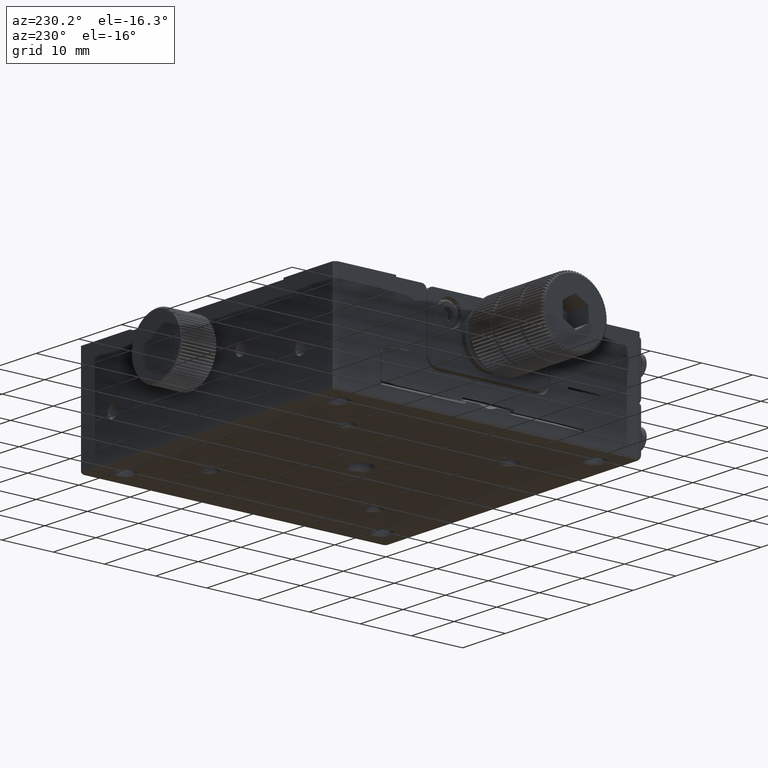
[diagram: clean part render]
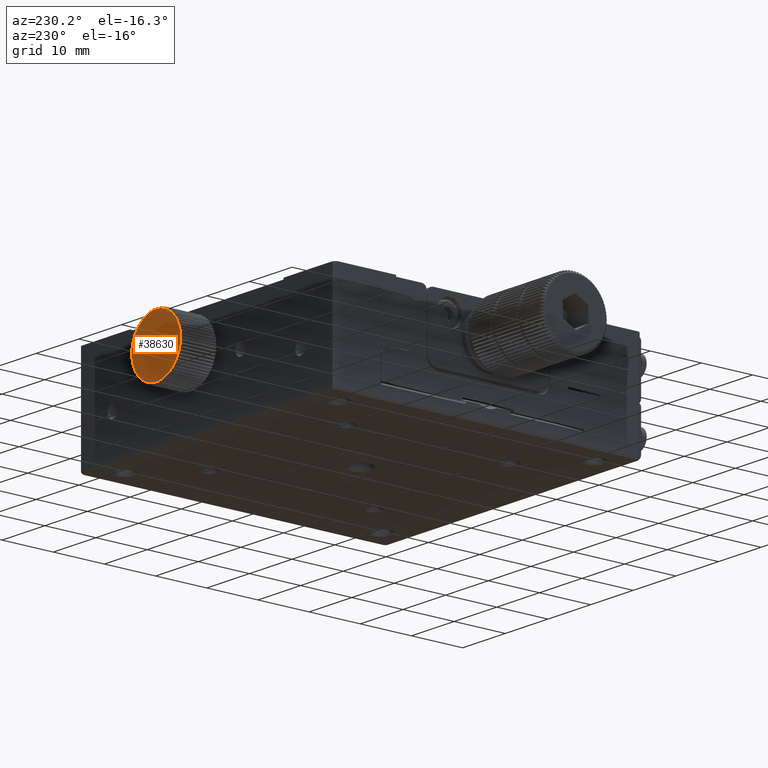
[diagram: same view with one face highlighted and labeled with its STEP entity id]
A machine part, auxiliary view. The second image highlights one B-rep face of the part: STEP entity #38630.
In plain terms, the highlighted planar face has unit normal (-0, -1, -0).
Its self-contained STEP definition (entity closure, byte-faithful):
#73 = CARTESIAN_POINT ( 'NONE',  ( -5.637851296924623057E-14, 39.88660254037768027, 71.59999999999998010 ) ) ;
#114 = CARTESIAN_POINT ( 'NONE',  ( -5.637851296924623057E-14, 39.88660254037768027, 71.59999999999998010 ) ) ;
#170 = ORIENTED_EDGE ( 'NONE', *, *, #13670, .F. ) ;
#202 = CARTESIAN_POINT ( 'NONE',  ( -4.456439450089708210, 39.88660254037885977, 75.15389187061225584 ) ) ;
#418 = VERTEX_POINT ( 'NONE', #12249 ) ;
#574 = DIRECTION ( 'NONE',  ( 0.000000000000000000, 0.000000000000000000, -1.000000000000000000 ) ) ;
#654 = CARTESIAN_POINT ( 'NONE',  ( -5.637851296924623057E-14, 39.88660254037768027, 71.59999999999998010 ) ) ;
#813 = AXIS2_PLACEMENT_3D ( 'NONE', #654, #23727, #24073 ) ;
#843 = CARTESIAN_POINT ( 'NONE',  ( -5.637851296924623057E-14, 39.88660254037768027, 71.59999999999998010 ) ) ;
#985 = CARTESIAN_POINT ( 'NONE',  ( 3.750250737874688767, 39.88660254037885977, 67.30749264375825192 ) ) ;
#1042 = DIRECTION ( 'NONE',  ( 0.000000000000000000, -1.000000000000000000, 0.000000000000000000 ) ) ;
#1743 = VERTEX_POINT ( 'NONE', #16756 ) ;
#1746 = CARTESIAN_POINT ( 'NONE',  ( -5.637851296924623057E-14, 39.88660254037768027, 71.59999999999998010 ) ) ;
#1793 = DIRECTION ( 'NONE',  ( 0.000000000000000000, -1.000000000000000000, 0.000000000000000000 ) ) ;
#1891 = EDGE_CURVE ( 'NONE', #21745, #46758, #45367, .T. ) ;
#1985 = DIRECTION ( 'NONE',  ( 0.000000000000000000, -1.000000000000000000, 0.000000000000000000 ) ) ;
#2008 = CIRCLE ( 'NONE', #14064, 5.700000000028015990 ) ;
#2281 = CARTESIAN_POINT ( 'NONE',  ( 1.516410019737370662, 39.88660254037885977, 66.10541169400659101 ) ) ;
#2411 = DIRECTION ( 'NONE',  ( 0.000000000000000000, 1.303473165011296040E-31, -1.000000000000000000 ) ) ;
#2430 = EDGE_CURVE ( 'NONE', #2847, #47675, #12878, .T. ) ;
#2717 = VERTEX_POINT ( 'NONE', #64914 ) ;
#2847 = VERTEX_POINT ( 'NONE', #71300 ) ;
#2948 = VERTEX_POINT ( 'NONE', #55495 ) ;
#3028 = VERTEX_POINT ( 'NONE', #57364 ) ;
#3254 = CARTESIAN_POINT ( 'NONE',  ( -5.241308303569086391, 39.88660254037885977, 69.35975731956162349 ) ) ;
#3396 = CARTESIAN_POINT ( 'NONE',  ( 0.5109440607520693289, 39.88660254037885977, 77.27705347580072726 ) ) ;
#3452 = CARTESIAN_POINT ( 'NONE',  ( -5.637851296924623057E-14, 39.88660254037768027, 71.59999999999998010 ) ) ;
#3989 = CIRCLE ( 'NONE', #22145, 5.700000000028015990 ) ;
#4030 = CARTESIAN_POINT ( 'NONE',  ( -5.637851296924623057E-14, 39.88660254037768027, 71.59999999999998010 ) ) ;
#4121 = VERTEX_POINT ( 'NONE', #53152 ) ;
#4177 = DIRECTION ( 'NONE',  ( 0.000000000000000000, 0.000000000000000000, -1.000000000000000000 ) ) ;
#4229 = CIRCLE ( 'NONE', #19952, 5.700000000028015990 ) ;
#4582 = CIRCLE ( 'NONE', #46755, 5.700000000028015990 ) ;
#4630 = CARTESIAN_POINT ( 'NONE',  ( -5.637851296924623057E-14, 39.88660254037768027, 71.59999999999998010 ) ) ;
#4690 = VERTEX_POINT ( 'NONE', #56081 ) ;
#4863 = CARTESIAN_POINT ( 'NONE',  ( -5.637851296924623057E-14, 39.88660254037768027, 71.59999999999998010 ) ) ;
#4919 = CARTESIAN_POINT ( 'NONE',  ( -5.694260479313539847, 39.88660254037885977, 71.34427046700079700 ) ) ;
#4964 = VERTEX_POINT ( 'NONE', #37169 ) ;
#4996 = ORIENTED_EDGE ( 'NONE', *, *, #41242, .F. ) ;
#5050 = DIRECTION ( 'NONE',  ( 0.000000000000000000, 0.000000000000000000, -1.000000000000000000 ) ) ;
#5168 = DIRECTION ( 'NONE',  ( 0.000000000000000000, -1.000000000000000000, 0.000000000000000000 ) ) ;
#5618 = DIRECTION ( 'NONE',  ( 0.000000000000000000, 0.000000000000000000, -1.000000000000000000 ) ) ;
#5873 = CARTESIAN_POINT ( 'NONE',  ( 5.648413642104929799, 39.88660254037885977, 70.83487038483552567 ) ) ;
#5888 = DIRECTION ( 'NONE',  ( 0.000000000000000000, -1.000000000000000000, 0.000000000000000000 ) ) ;
#5984 = CARTESIAN_POINT ( 'NONE',  ( -0.5109440607521404942, 39.88660254037885977, 65.92294652419921874 ) ) ;
#6027 = CIRCLE ( 'NONE', #24158, 5.700000000028015990 ) ;
#6265 = DIRECTION ( 'NONE',  ( 0.000000000000000000, -1.000000000000000000, 0.000000000000000000 ) ) ;
#6295 = CARTESIAN_POINT ( 'NONE',  ( -5.637851296924623057E-14, 39.88660254037768027, 71.59999999999998010 ) ) ;
#6296 = CIRCLE ( 'NONE', #65352, 5.700000000028015990 ) ;
#6415 = CARTESIAN_POINT ( 'NONE',  ( -1.516410019737519876, 39.88660254037885977, 77.09458830599336920 ) ) ;
#6450 = CIRCLE ( 'NONE', #20951, 5.700000000028015990 ) ;
#6513 = CARTESIAN_POINT ( 'NONE',  ( -1.017774300357290107, 39.88660254037885977, 65.99160134496024455 ) ) ;
#6578 = VERTEX_POINT ( 'NONE', #2281 ) ;
#6614 = DIRECTION ( 'NONE',  ( 0.000000000000000000, -1.000000000000000000, 0.000000000000000000 ) ) ;
#6656 = DIRECTION ( 'NONE',  ( 0.000000000000000000, 0.000000000000000000, -1.000000000000000000 ) ) ;
#6736 = CIRCLE ( 'NONE', #30906, 5.700000000028015990 ) ;
#7068 = CIRCLE ( 'NONE', #73309, 5.700000000028015990 ) ;
#7110 = ORIENTED_EDGE ( 'NONE', *, *, #16352, .F. ) ;
#7203 = CARTESIAN_POINT ( 'NONE',  ( -5.637851296924623057E-14, 39.88660254037768027, 71.59999999999998010 ) ) ;
#7286 = CARTESIAN_POINT ( 'NONE',  ( -2.002836497273515093, 39.88660254037885977, 76.93653876267272551 ) ) ;
#7307 = DIRECTION ( 'NONE',  ( 0.000000000000000000, 0.000000000000000000, -1.000000000000000000 ) ) ;
#7354 = DIRECTION ( 'NONE',  ( 0.000000000000000000, -1.000000000000000000, 0.000000000000000000 ) ) ;
#7441 = CIRCLE ( 'NONE', #56867, 5.700000000028015990 ) ;
#7698 = ORIENTED_EDGE ( 'NONE', *, *, #53261, .F. ) ;
#7791 = CIRCLE ( 'NONE', #19916, 5.700000000028015990 ) ;
#7846 = VERTEX_POINT ( 'NONE', #13282 ) ;
#8159 = AXIS2_PLACEMENT_3D ( 'NONE', #10452, #49301, #33459 ) ;
#8487 = CARTESIAN_POINT ( 'NONE',  ( 5.557089099463633275, 39.88660254037885977, 70.33163067644268551 ) ) ;
#8502 = AXIS2_PLACEMENT_3D ( 'NONE', #17986, #5888, #41760 ) ;
#8571 = CARTESIAN_POINT ( 'NONE',  ( -5.637851296924623057E-14, 39.88660254037768027, 71.59999999999998010 ) ) ;
#8854 = FACE_OUTER_BOUND ( 'NONE', #38621, .T. ) ;
#8940 = CIRCLE ( 'NONE', #25839, 5.700000000028015990 ) ;
#9014 = CARTESIAN_POINT ( 'NONE',  ( 3.750250737874778917, 39.88660254037885977, 75.89250735624162303 ) ) ;
#9110 = ORIENTED_EDGE ( 'NONE', *, *, #56366, .F. ) ;
#9212 = EDGE_CURVE ( 'NONE', #36955, #47309, #25743, .T. ) ;
#9265 = ORIENTED_EDGE ( 'NONE', *, *, #2430, .F. ) ;
#9315 = CIRCLE ( 'NONE', #813, 5.700000000028015990 ) ;
#9342 = DIRECTION ( 'NONE',  ( 0.000000000000000000, 0.000000000000000000, -1.000000000000000000 ) ) ;
#9366 = ORIENTED_EDGE ( 'NONE', *, *, #31035, .F. ) ;
#9371 = CARTESIAN_POINT ( 'NONE',  ( 4.456439450089652254, 39.88660254037885977, 75.15389187061218479 ) ) ;
#9394 = EDGE_CURVE ( 'NONE', #53259, #9563, #6450, .T. ) ;
#9557 = EDGE_CURVE ( 'NONE', #4690, #39215, #70232, .T. ) ;
#9563 = VERTEX_POINT ( 'NONE', #19913 ) ;
#9565 = DIRECTION ( 'NONE',  ( 0.000000000000000000, -1.000000000000000000, 0.000000000000000000 ) ) ;
#9956 = VERTEX_POINT ( 'NONE', #29626 ) ;
#10272 = ORIENTED_EDGE ( 'NONE', *, *, #59354, .F. ) ;
#10283 = DIRECTION ( 'NONE',  ( 0.000000000000000000, -1.000000000000000000, 0.000000000000000000 ) ) ;
#10438 = ORIENTED_EDGE ( 'NONE', *, *, #74310, .F. ) ;
#10452 = CARTESIAN_POINT ( 'NONE',  ( -5.637851296924623057E-14, 39.88660254037768027, 71.59999999999998010 ) ) ;
#10554 = CIRCLE ( 'NONE', #67154, 5.700000000028015990 ) ;
#10603 = DIRECTION ( 'NONE',  ( 0.000000000000000000, 0.000000000000000000, -1.000000000000000000 ) ) ;
#10739 = DIRECTION ( 'NONE',  ( 0.000000000000000000, -1.000000000000000000, 0.000000000000000000 ) ) ;
#10788 = DIRECTION ( 'NONE',  ( 0.000000000000000000, -1.000000000000000000, 0.000000000000000000 ) ) ;
#10950 = CIRCLE ( 'NONE', #67487, 5.700000000028015990 ) ;
#11592 = CARTESIAN_POINT ( 'NONE',  ( -5.637851296924623057E-14, 39.88660254037768027, 71.59999999999998010 ) ) ;
#11844 = DIRECTION ( 'NONE',  ( 0.000000000000000000, -1.000000000000000000, 0.000000000000000000 ) ) ;
#12205 = DIRECTION ( 'NONE',  ( 0.000000000000000000, 0.000000000000000000, -1.000000000000000000 ) ) ;
#12206 = EDGE_CURVE ( 'NONE', #52687, #36594, #29817, .T. ) ;
#12249 = CARTESIAN_POINT ( 'NONE',  ( -1.516410019737558068, 39.88660254037885977, 66.10541169400660522 ) ) ;
#12426 = EDGE_CURVE ( 'NONE', #20358, #43337, #27495, .T. ) ;
#12703 = DIRECTION ( 'NONE',  ( 0.000000000000000000, -1.000000000000000000, 0.000000000000000000 ) ) ;
#12734 = VERTEX_POINT ( 'NONE', #31465 ) ;
#12870 = VERTEX_POINT ( 'NONE', #42247 ) ;
#12878 = CIRCLE ( 'NONE', #61053, 5.700000000028015990 ) ;
#13066 = DIRECTION ( 'NONE',  ( 0.000000000000000000, 0.000000000000000000, -1.000000000000000000 ) ) ;
#13146 = AXIS2_PLACEMENT_3D ( 'NONE', #52757, #1042, #24105 ) ;
#13282 = CARTESIAN_POINT ( 'NONE',  ( 5.241308303568989579, 39.88660254037885977, 73.84024268043830830 ) ) ;
#13427 = CIRCLE ( 'NONE', #66436, 5.700000000028015990 ) ;
#13670 = EDGE_CURVE ( 'NONE', #28881, #12734, #7068, .T. ) ;
#13829 = CARTESIAN_POINT ( 'NONE',  ( -5.637851296924623057E-14, 39.88660254037768027, 71.59999999999998010 ) ) ;
#13935 = ORIENTED_EDGE ( 'NONE', *, *, #46696, .F. ) ;
#14064 = AXIS2_PLACEMENT_3D ( 'NONE', #59508, #1793, #36548 ) ;
#14167 = CARTESIAN_POINT ( 'NONE',  ( 2.520483973924811494, 39.88660254037885977, 77.04492061807954428 ) ) ;
#14226 = DIRECTION ( 'NONE',  ( 0.000000000000000000, 0.000000000000000000, -1.000000000000000000 ) ) ;
#14389 = DIRECTION ( 'NONE',  ( 0.000000000000000000, -1.000000000000000000, 0.000000000000000000 ) ) ;
#14447 = DIRECTION ( 'NONE',  ( 0.000000000000000000, 0.000000000000000000, -1.000000000000000000 ) ) ;
#14514 = AXIS2_PLACEMENT_3D ( 'NONE', #27974, #68999, #63364 ) ;
#14641 = CIRCLE ( 'NONE', #49597, 5.700000000028015990 ) ;
#14771 = CIRCLE ( 'NONE', #35288, 5.700000000028015990 ) ;
#14906 = DIRECTION ( 'NONE',  ( 0.000000000000000000, -1.000000000000000000, 0.000000000000000000 ) ) ;
#14962 = DIRECTION ( 'NONE',  ( 0.000000000000000000, -1.000000000000000000, 0.000000000000000000 ) ) ;
#15010 = EDGE_CURVE ( 'NONE', #4121, #27420, #10950, .T. ) ;
#15073 = CIRCLE ( 'NONE', #25933, 5.700000000028015990 ) ;
#15098 = DIRECTION ( 'NONE',  ( 0.000000000000000000, -1.000000000000000000, 0.000000000000000000 ) ) ;
#15288 = CARTESIAN_POINT ( 'NONE',  ( -5.637851296924623057E-14, 39.88660254037768027, 71.59999999999998010 ) ) ;
#15297 = CARTESIAN_POINT ( 'NONE',  ( -5.421022142909071029, 39.88660254037885977, 73.36139686794585657 ) ) ;
#15330 = ORIENTED_EDGE ( 'NONE', *, *, #1891, .F. ) ;
#15477 = CARTESIAN_POINT ( 'NONE',  ( -5.637851296924623057E-14, 39.88660254037768027, 71.59999999999998010 ) ) ;
#15611 = DIRECTION ( 'NONE',  ( 0.000000000000000000, 0.000000000000000000, -1.000000000000000000 ) ) ;
#15688 = CIRCLE ( 'NONE', #57810, 5.700000000028015990 ) ;
#15793 = DIRECTION ( 'NONE',  ( 0.000000000000000000, 0.000000000000000000, -1.000000000000000000 ) ) ;
#15910 = VERTEX_POINT ( 'NONE', #29157 ) ;
#16031 = DIRECTION ( 'NONE',  ( 0.000000000000000000, 0.000000000000000000, -1.000000000000000000 ) ) ;
#16352 = EDGE_CURVE ( 'NONE', #40841, #16674, #19325, .T. ) ;
#16417 = CARTESIAN_POINT ( 'NONE',  ( -5.637851296924623057E-14, 39.88660254037768027, 71.59999999999998010 ) ) ;
#16654 = ORIENTED_EDGE ( 'NONE', *, *, #44591, .F. ) ;
#16674 = VERTEX_POINT ( 'NONE', #9014 ) ;
#16756 = CARTESIAN_POINT ( 'NONE',  ( -3.750250737874827323, 39.88660254037885977, 75.89250735624167987 ) ) ;
#16811 = DIRECTION ( 'NONE',  ( 0.000000000000000000, 0.000000000000000000, -1.000000000000000000 ) ) ;
#16949 = DIRECTION ( 'NONE',  ( 0.000000000000000000, -1.000000000000000000, 0.000000000000000000 ) ) ;
#16989 = DIRECTION ( 'NONE',  ( 0.000000000000000000, 0.000000000000000000, -1.000000000000000000 ) ) ;
#17222 = DIRECTION ( 'NONE',  ( 0.000000000000000000, -1.000000000000000000, 0.000000000000000000 ) ) ;
#17354 = VERTEX_POINT ( 'NONE', #42721 ) ;
#17413 = DIRECTION ( 'NONE',  ( 0.000000000000000000, -1.000000000000000000, 0.000000000000000000 ) ) ;
#17520 = DIRECTION ( 'NONE',  ( 0.000000000000000000, -1.000000000000000000, 0.000000000000000000 ) ) ;
#17540 = DIRECTION ( 'NONE',  ( 0.000000000000000000, -1.000000000000000000, 0.000000000000000000 ) ) ;
#17929 = VERTEX_POINT ( 'NONE', #39757 ) ;
#17986 = CARTESIAN_POINT ( 'NONE',  ( -5.637851296924623057E-14, 39.88660254037768027, 71.59999999999998010 ) ) ;
#18019 = ORIENTED_EDGE ( 'NONE', *, *, #57390, .F. ) ;
#18029 = DIRECTION ( 'NONE',  ( 0.000000000000000000, 0.000000000000000000, -1.000000000000000000 ) ) ;
#18349 = AXIS2_PLACEMENT_3D ( 'NONE', #46924, #69879, #41286 ) ;
#18352 = AXIS2_PLACEMENT_3D ( 'NONE', #29668, #6614, #47757 ) ;
#18426 = CIRCLE ( 'NONE', #70137, 5.700000000028015990 ) ;
#18543 = CARTESIAN_POINT ( 'NONE',  ( -4.456439450089735743, 39.88660254037885977, 68.04610812938774700 ) ) ;
#18548 = ORIENTED_EDGE ( 'NONE', *, *, #49307, .F. ) ;
#18550 = ORIENTED_EDGE ( 'NONE', *, *, #20490, .F. ) ;
#18590 = ORIENTED_EDGE ( 'NONE', *, *, #24754, .F. ) ;
#18708 = EDGE_CURVE ( 'NONE', #31258, #73371, #42466, .T. ) ;
#18831 = CIRCLE ( 'NONE', #60954, 5.700000000028015990 ) ;
#18877 = CIRCLE ( 'NONE', #57400, 5.700000000028015990 ) ;
#19255 = CIRCLE ( 'NONE', #28901, 5.700000000028015990 ) ;
#19283 = CARTESIAN_POINT ( 'NONE',  ( -5.637851296924623057E-14, 39.88660254037768027, 71.59999999999998010 ) ) ;
#19325 = CIRCLE ( 'NONE', #14514, 5.700000000028015990 ) ;
#19579 = EDGE_CURVE ( 'NONE', #27420, #40841, #15073, .T. ) ;
#19757 = AXIS2_PLACEMENT_3D ( 'NONE', #43080, #14389, #4177 ) ;
#19852 = DIRECTION ( 'NONE',  ( -6.067335193682636346E-33, -1.000000000000000000, -1.303473165011296040E-31 ) ) ;
#19913 = CARTESIAN_POINT ( 'NONE',  ( -0.5109440607520979727, 39.88660254037885977, 77.27705347580075568 ) ) ;
#19916 = AXIS2_PLACEMENT_3D ( 'NONE', #38410, #37286, #61378 ) ;
#19952 = AXIS2_PLACEMENT_3D ( 'NONE', #74324, #17413, #34400 ) ;
#20013 = CARTESIAN_POINT ( 'NONE',  ( 5.694260479313428824, 39.88660254037885977, 71.34427046700072594 ) ) ;
#20157 = EDGE_CURVE ( 'NONE', #50677, #30917, #42642, .T. ) ;
#20158 = EDGE_CURVE ( 'NONE', #9956, #24399, #28250, .T. ) ;
#20358 = VERTEX_POINT ( 'NONE', #39380 ) ;
#20360 = CARTESIAN_POINT ( 'NONE',  ( 3.350375938083550942, 39.88660254037885977, 76.21139686795982016 ) ) ;
#20471 = EDGE_CURVE ( 'NONE', #1743, #21745, #70306, .T. ) ;
#20490 = EDGE_CURVE ( 'NONE', #7846, #52629, #37864, .T. ) ;
#20506 = CARTESIAN_POINT ( 'NONE',  ( 5.019394531608052823, 39.88660254037885977, 74.30105137610929944 ) ) ;
#20643 = CARTESIAN_POINT ( 'NONE',  ( -5.637851296924623057E-14, 39.88660254037768027, 71.59999999999998010 ) ) ;
#20679 = ORIENTED_EDGE ( 'NONE', *, *, #18708, .F. ) ;
#20773 = CARTESIAN_POINT ( 'NONE',  ( -5.637851296924623057E-14, 39.88660254037768027, 71.59999999999998010 ) ) ;
#20890 = DIRECTION ( 'NONE',  ( 0.000000000000000000, 0.000000000000000000, -1.000000000000000000 ) ) ;
#20951 = AXIS2_PLACEMENT_3D ( 'NONE', #51248, #67802, #15793 ) ;
#21030 = DIRECTION ( 'NONE',  ( 0.000000000000000000, 0.000000000000000000, -1.000000000000000000 ) ) ;
#21386 = ORIENTED_EDGE ( 'NONE', *, *, #30107, .F. ) ;
#21492 = VERTEX_POINT ( 'NONE', #20360 ) ;
#21662 = CARTESIAN_POINT ( 'NONE',  ( 4.119930723836366937, 39.88660254037885977, 75.53905709924444523 ) ) ;
#21684 = DIRECTION ( 'NONE',  ( 0.000000000000000000, -1.000000000000000000, 0.000000000000000000 ) ) ;
#21724 = CARTESIAN_POINT ( 'NONE',  ( -4.119930723836414899, 39.88660254037885977, 75.53905709924448786 ) ) ;
#21745 = VERTEX_POINT ( 'NONE', #21724 ) ;
#21917 = DIRECTION ( 'NONE',  ( 0.000000000000000000, -1.000000000000000000, 0.000000000000000000 ) ) ;
#22145 = AXIS2_PLACEMENT_3D ( 'NONE', #39743, #56335, #15611 ) ;
#22314 = CARTESIAN_POINT ( 'NONE',  ( -5.557089099463771831, 39.88660254037885977, 72.86836932355723206 ) ) ;
#22471 = CARTESIAN_POINT ( 'NONE',  ( -5.637851296924623057E-14, 39.88660254037768027, 71.59999999999998010 ) ) ;
#22867 = DIRECTION ( 'NONE',  ( 0.000000000000000000, -1.000000000000000000, 0.000000000000000000 ) ) ;
#22974 = ORIENTED_EDGE ( 'NONE', *, *, #34687, .F. ) ;
#23186 = DIRECTION ( 'NONE',  ( 0.000000000000000000, -1.000000000000000000, 0.000000000000000000 ) ) ;
#23726 = AXIS2_PLACEMENT_3D ( 'NONE', #843, #65309, #35588 ) ;
#23727 = DIRECTION ( 'NONE',  ( 0.000000000000000000, -1.000000000000000000, 0.000000000000000000 ) ) ;
#23921 = CARTESIAN_POINT ( 'NONE',  ( -5.637851296924623057E-14, 39.88660254037768027, 71.59999999999998010 ) ) ;
#24044 = ORIENTED_EDGE ( 'NONE', *, *, #71694, .F. ) ;
#24073 = DIRECTION ( 'NONE',  ( 0.000000000000000000, 0.000000000000000000, -1.000000000000000000 ) ) ;
#24105 = DIRECTION ( 'NONE',  ( 0.000000000000000000, 0.000000000000000000, -1.000000000000000000 ) ) ;
#24149 = DIRECTION ( 'NONE',  ( 0.000000000000000000, 0.000000000000000000, -1.000000000000000000 ) ) ;
#24158 = AXIS2_PLACEMENT_3D ( 'NONE', #69886, #39650, #45303 ) ;
#24335 = ORIENTED_EDGE ( 'NONE', *, *, #47817, .F. ) ;
#24362 = ORIENTED_EDGE ( 'NONE', *, *, #36824, .F. ) ;
#24387 = EDGE_CURVE ( 'NONE', #66397, #15910, #3989, .T. ) ;
#24399 = VERTEX_POINT ( 'NONE', #28452 ) ;
#24403 = CARTESIAN_POINT ( 'NONE',  ( -5.637851296924623057E-14, 39.88660254037768027, 71.59999999999998010 ) ) ;
#24441 = CARTESIAN_POINT ( 'NONE',  ( -5.648413642105040822, 39.88660254037885977, 72.36512961516439191 ) ) ;
#24442 = AXIS2_PLACEMENT_3D ( 'NONE', #24403, #57943, #35738 ) ;
#24541 = AXIS2_PLACEMENT_3D ( 'NONE', #1746, #14962, #14226 ) ;
#24618 = DIRECTION ( 'NONE',  ( 0.000000000000000000, 0.000000000000000000, -1.000000000000000000 ) ) ;
#24641 = EDGE_CURVE ( 'NONE', #47675, #46600, #47398, .T. ) ;
#24754 = EDGE_CURVE ( 'NONE', #71475, #45193, #55869, .T. ) ;
#24773 = DIRECTION ( 'NONE',  ( 0.000000000000000000, 0.000000000000000000, -1.000000000000000000 ) ) ;
#25737 = CIRCLE ( 'NONE', #38975, 5.700000000028015990 ) ;
#25743 = CIRCLE ( 'NONE', #59387, 5.700000000028015990 ) ;
#25781 = AXIS2_PLACEMENT_3D ( 'NONE', #64693, #7354, #24773 ) ;
#25839 = AXIS2_PLACEMENT_3D ( 'NONE', #69769, #63414, #35514 ) ;
#25879 = ORIENTED_EDGE ( 'NONE', *, *, #43995, .F. ) ;
#25886 = ORIENTED_EDGE ( 'NONE', *, *, #39238, .F. ) ;
#25933 = AXIS2_PLACEMENT_3D ( 'NONE', #47966, #43429, #30991 ) ;
#26181 = DIRECTION ( 'NONE',  ( 0.000000000000000000, -1.000000000000000000, 0.000000000000000000 ) ) ;
#26325 = ORIENTED_EDGE ( 'NONE', *, *, #55292, .F. ) ;
#26550 = CARTESIAN_POINT ( 'NONE',  ( -5.637851296924623057E-14, 39.88660254037768027, 71.59999999999998010 ) ) ;
#26562 = CIRCLE ( 'NONE', #33758, 5.700000000028015990 ) ;
#26630 = CARTESIAN_POINT ( 'NONE',  ( 1.017774300357097594, 39.88660254037885977, 65.99160134496023034 ) ) ;
#26757 = ORIENTED_EDGE ( 'NONE', *, *, #38132, .F. ) ;
#26818 = CARTESIAN_POINT ( 'NONE',  ( -2.002836497273559946, 39.88660254037885977, 66.26346123732726312 ) ) ;
#26921 = DIRECTION ( 'NONE',  ( 0.000000000000000000, 0.000000000000000000, -1.000000000000000000 ) ) ;
#26955 = DIRECTION ( 'NONE',  ( 0.000000000000000000, -1.000000000000000000, 0.000000000000000000 ) ) ;
#27016 = CARTESIAN_POINT ( 'NONE',  ( -5.637851296924623057E-14, 39.88660254037768027, 71.59999999999998010 ) ) ;
#27084 = CARTESIAN_POINT ( 'NONE',  ( -5.637851296924623057E-14, 39.88660254037768027, 71.59999999999998010 ) ) ;
#27085 = DIRECTION ( 'NONE',  ( 0.000000000000000000, -1.000000000000000000, 0.000000000000000000 ) ) ;
#27420 = VERTEX_POINT ( 'NONE', #9371 ) ;
#27495 = CIRCLE ( 'NONE', #8159, 5.700000000028015990 ) ;
#27785 = ORIENTED_EDGE ( 'NONE', *, *, #29746, .F. ) ;
#27974 = CARTESIAN_POINT ( 'NONE',  ( -5.637851296924623057E-14, 39.88660254037768027, 71.59999999999998010 ) ) ;
#27981 = AXIS2_PLACEMENT_3D ( 'NONE', #34872, #17540, #30695 ) ;
#28048 = VERTEX_POINT ( 'NONE', #74113 ) ;
#28203 = CIRCLE ( 'NONE', #69094, 5.700000000028015990 ) ;
#28237 = DIRECTION ( 'NONE',  ( 0.000000000000000000, 0.000000000000000000, -1.000000000000000000 ) ) ;
#28250 = CIRCLE ( 'NONE', #58269, 5.700000000028015990 ) ;
#28299 = VERTEX_POINT ( 'NONE', #66507 ) ;
#28452 = CARTESIAN_POINT ( 'NONE',  ( 4.456439450089575871, 39.88660254037885977, 68.04610812938769016 ) ) ;
#28542 = CARTESIAN_POINT ( 'NONE',  ( -5.637851296924623057E-14, 39.88660254037768027, 71.59999999999998010 ) ) ;
#28747 = ORIENTED_EDGE ( 'NONE', *, *, #9212, .F. ) ;
#28881 = VERTEX_POINT ( 'NONE', #53887 ) ;
#28901 = AXIS2_PLACEMENT_3D ( 'NONE', #27084, #50058, #45518 ) ;
#28923 = CARTESIAN_POINT ( 'NONE',  ( -5.637851296924623057E-14, 39.88660254037768027, 71.59999999999998010 ) ) ;
#29157 = CARTESIAN_POINT ( 'NONE',  ( -5.694260479313539847, 39.88660254037885977, 71.85572953299920584 ) ) ;
#29218 = CIRCLE ( 'NONE', #36449, 5.700000000028015990 ) ;
#29626 = CARTESIAN_POINT ( 'NONE',  ( 4.119930723836276343, 39.88660254037885977, 67.66094290075544393 ) ) ;
#29668 = CARTESIAN_POINT ( 'NONE',  ( -5.637851296924623057E-14, 39.88660254037768027, 71.59999999999998010 ) ) ;
#29678 = DIRECTION ( 'NONE',  ( 0.000000000000000000, -1.000000000000000000, 0.000000000000000000 ) ) ;
#29746 = EDGE_CURVE ( 'NONE', #30917, #66397, #33710, .T. ) ;
#29817 = CIRCLE ( 'NONE', #69507, 5.700000000028015990 ) ;
#30107 = EDGE_CURVE ( 'NONE', #32962, #71475, #26562, .T. ) ;
#30132 = ORIENTED_EDGE ( 'NONE', *, *, #32735, .F. ) ;
#30197 = AXIS2_PLACEMENT_3D ( 'NONE', #27016, #14906, #44696 ) ;
#30241 = DIRECTION ( 'NONE',  ( 0.000000000000000000, 0.000000000000000000, -1.000000000000000000 ) ) ;
#30288 = DIRECTION ( 'NONE',  ( 0.000000000000000000, 0.000000000000000000, -1.000000000000000000 ) ) ;
#30695 = DIRECTION ( 'NONE',  ( 0.000000000000000000, 0.000000000000000000, -1.000000000000000000 ) ) ;
#30731 = EDGE_CURVE ( 'NONE', #24399, #2847, #6027, .T. ) ;
#30830 = ORIENTED_EDGE ( 'NONE', *, *, #50673, .F. ) ;
#30906 = AXIS2_PLACEMENT_3D ( 'NONE', #41418, #63279, #46697 ) ;
#30917 = VERTEX_POINT ( 'NONE', #22314 ) ;
#30991 = DIRECTION ( 'NONE',  ( 0.000000000000000000, 0.000000000000000000, -1.000000000000000000 ) ) ;
#31035 = EDGE_CURVE ( 'NONE', #47082, #45348, #44628, .T. ) ;
#31258 = VERTEX_POINT ( 'NONE', #74509 ) ;
#31465 = CARTESIAN_POINT ( 'NONE',  ( 2.473137312982227165, 39.88660254037885977, 76.73552254706898168 ) ) ;
#31667 = EDGE_CURVE ( 'NONE', #418, #47082, #47123, .T. ) ;
#31680 = VERTEX_POINT ( 'NONE', #50717 ) ;
#31706 = EDGE_CURVE ( 'NONE', #46758, #2717, #57940, .T. ) ;
#31786 = AXIS2_PLACEMENT_3D ( 'NONE', #7203, #58522, #30241 ) ;
#31809 = CARTESIAN_POINT ( 'NONE',  ( -5.637851296924623057E-14, 39.88660254037768027, 71.59999999999998010 ) ) ;
#32402 = ORIENTED_EDGE ( 'NONE', *, *, #63710, .F. ) ;
#32530 = DIRECTION ( 'NONE',  ( 0.000000000000000000, 0.000000000000000000, -1.000000000000000000 ) ) ;
#32735 = EDGE_CURVE ( 'NONE', #12870, #3028, #59285, .T. ) ;
#32804 = VERTEX_POINT ( 'NONE', #7286 ) ;
#32962 = VERTEX_POINT ( 'NONE', #52946 ) ;
#33436 = EDGE_CURVE ( 'NONE', #42215, #40989, #6296, .T. ) ;
#33459 = DIRECTION ( 'NONE',  ( 0.000000000000000000, 0.000000000000000000, -1.000000000000000000 ) ) ;
#33663 = DIRECTION ( 'NONE',  ( 0.000000000000000000, 0.000000000000000000, -1.000000000000000000 ) ) ;
#33710 = CIRCLE ( 'NONE', #74565, 5.700000000028015990 ) ;
#33758 = AXIS2_PLACEMENT_3D ( 'NONE', #51599, #6265, #52684 ) ;
#33961 = ORIENTED_EDGE ( 'NONE', *, *, #9557, .F. ) ;
#34038 = ORIENTED_EDGE ( 'NONE', *, *, #34823, .F. ) ;
#34220 = CIRCLE ( 'NONE', #25781, 5.700000000028015990 ) ;
#34400 = DIRECTION ( 'NONE',  ( 0.000000000000000000, 0.000000000000000000, -1.000000000000000000 ) ) ;
#34437 = AXIS2_PLACEMENT_3D ( 'NONE', #48709, #36671, #59626 ) ;
#34453 = VERTEX_POINT ( 'NONE', #62320 ) ;
#34492 = DIRECTION ( 'NONE',  ( 0.000000000000000000, 0.000000000000000000, -1.000000000000000000 ) ) ;
#34586 = DIRECTION ( 'NONE',  ( 0.000000000000000000, 0.000000000000000000, -1.000000000000000000 ) ) ;
#34596 = DIRECTION ( 'NONE',  ( 0.000000000000000000, -1.000000000000000000, 0.000000000000000000 ) ) ;
#34687 = EDGE_CURVE ( 'NONE', #12734, #71914, #53309, .T. ) ;
#34823 = EDGE_CURVE ( 'NONE', #2948, #39918, #29218, .T. ) ;
#34857 = DIRECTION ( 'NONE',  ( 0.000000000000000000, 0.000000000000000000, -1.000000000000000000 ) ) ;
#34872 = CARTESIAN_POINT ( 'NONE',  ( -5.637851296924623057E-14, 39.88660254037768027, 71.59999999999998010 ) ) ;
#35100 = VERTEX_POINT ( 'NONE', #50739 ) ;
#35226 = ORIENTED_EDGE ( 'NONE', *, *, #36996, .F. ) ;
#35288 = AXIS2_PLACEMENT_3D ( 'NONE', #57574, #41348, #34586 ) ;
#35475 = DIRECTION ( 'NONE',  ( 0.000000000000000000, -1.000000000000000000, 0.000000000000000000 ) ) ;
#35484 = CIRCLE ( 'NONE', #48731, 5.700000000028015990 ) ;
#35514 = DIRECTION ( 'NONE',  ( 0.000000000000000000, 0.000000000000000000, -1.000000000000000000 ) ) ;
#35588 = DIRECTION ( 'NONE',  ( 0.000000000000000000, 0.000000000000000000, -1.000000000000000000 ) ) ;
#35737 = DIRECTION ( 'NONE',  ( 0.000000000000000000, 0.000000000000000000, -1.000000000000000000 ) ) ;
#35738 = DIRECTION ( 'NONE',  ( 0.000000000000000000, 0.000000000000000000, -1.000000000000000000 ) ) ;
#35762 = VERTEX_POINT ( 'NONE', #26630 ) ;
#36272 = EDGE_CURVE ( 'NONE', #71914, #32962, #34220, .T. ) ;
#36449 = AXIS2_PLACEMENT_3D ( 'NONE', #13829, #12703, #35737 ) ;
#36548 = DIRECTION ( 'NONE',  ( 0.000000000000000000, 0.000000000000000000, -1.000000000000000000 ) ) ;
#36594 = VERTEX_POINT ( 'NONE', #41262 ) ;
#36608 = AXIS2_PLACEMENT_3D ( 'NONE', #11592, #34596, #51912 ) ;
#36671 = DIRECTION ( 'NONE',  ( 0.000000000000000000, -1.000000000000000000, 0.000000000000000000 ) ) ;
#36714 = CARTESIAN_POINT ( 'NONE',  ( 5.421022142908987540, 39.88660254037885977, 73.36139686794579973 ) ) ;
#36773 = ORIENTED_EDGE ( 'NONE', *, *, #38866, .F. ) ;
#36824 = EDGE_CURVE ( 'NONE', #39918, #58318, #54720, .T. ) ;
#36955 = VERTEX_POINT ( 'NONE', #18543 ) ;
#36996 = EDGE_CURVE ( 'NONE', #70924, #28048, #8940, .T. ) ;
#37169 = CARTESIAN_POINT ( 'NONE',  ( 5.694260479313428824, 39.88660254037885977, 71.85572953299912058 ) ) ;
#37286 = DIRECTION ( 'NONE',  ( 0.000000000000000000, -1.000000000000000000, 0.000000000000000000 ) ) ;
#37469 = DIRECTION ( 'NONE',  ( 0.000000000000000000, -1.000000000000000000, 0.000000000000000000 ) ) ;
#37864 = CIRCLE ( 'NONE', #55887, 5.700000000028015990 ) ;
#37963 = CIRCLE ( 'NONE', #46331, 5.700000000028015990 ) ;
#38044 = CARTESIAN_POINT ( 'NONE',  ( -4.757067546234873490, 39.88660254037885977, 68.45988720570757380 ) ) ;
#38065 = ORIENTED_EDGE ( 'NONE', *, *, #47185, .F. ) ;
#38132 = EDGE_CURVE ( 'NONE', #36594, #40988, #71697, .T. ) ;
#38238 = CARTESIAN_POINT ( 'NONE',  ( -5.637851296924623057E-14, 39.88660254037768027, 71.59999999999998010 ) ) ;
#38283 = ORIENTED_EDGE ( 'NONE', *, *, #43287, .F. ) ;
#38312 = DIRECTION ( 'NONE',  ( 0.000000000000000000, -1.000000000000000000, 0.000000000000000000 ) ) ;
#38385 = DIRECTION ( 'NONE',  ( 0.000000000000000000, 0.000000000000000000, -1.000000000000000000 ) ) ;
#38401 = DIRECTION ( 'NONE',  ( 0.000000000000000000, -1.000000000000000000, 0.000000000000000000 ) ) ;
#38410 = CARTESIAN_POINT ( 'NONE',  ( -5.637851296924623057E-14, 39.88660254037768027, 71.59999999999998010 ) ) ;
#38511 = ORIENTED_EDGE ( 'NONE', *, *, #50534, .F. ) ;
#38621 = EDGE_LOOP ( 'NONE', ( #66104, #59417, #9366, #40431, #10272, #26757, #57848, #68176, #40649, #16654, #28747, #48135, #33961, #61798, #47806, #35226, #74240, #40120, #63938, #66512, #27785, #72620, #38511, #20679, #25886, #64368, #15330, #51401, #7698, #18019, #30132, #38283, #68987, #65526, #10438, #57609, #13935, #18590, #21386, #46206, #22974, #170, #30830, #36773, #7110, #53590, #69343, #24335, #18550, #26325, #25879, #69427, #43162, #4996, #18548, #24362, #34038, #38065, #61342, #9265, #54816, #39568, #45922, #57163, #24044, #48248, #43265, #55976, #9110, #32402 ) ) ;
#38630 = ADVANCED_FACE ( 'NONE', ( #8854 ), #54899, .F. ) ;
#38718 = AXIS2_PLACEMENT_3D ( 'NONE', #62748, #45453, #5050 ) ;
#38866 = EDGE_CURVE ( 'NONE', #16674, #21492, #58507, .T. ) ;
#38975 = AXIS2_PLACEMENT_3D ( 'NONE', #114, #23186, #12205 ) ;
#39014 = EDGE_CURVE ( 'NONE', #17929, #51785, #18831, .T. ) ;
#39215 = VERTEX_POINT ( 'NONE', #38044 ) ;
#39238 = EDGE_CURVE ( 'NONE', #2717, #31258, #7791, .T. ) ;
#39380 = CARTESIAN_POINT ( 'NONE',  ( 3.350375938083447025, 39.88660254037885977, 66.98860313204008321 ) ) ;
#39549 = CARTESIAN_POINT ( 'NONE',  ( -5.637851296924623057E-14, 39.88660254037768027, 71.59999999999998010 ) ) ;
#39568 = ORIENTED_EDGE ( 'NONE', *, *, #20158, .F. ) ;
#39650 = DIRECTION ( 'NONE',  ( 0.000000000000000000, -1.000000000000000000, 0.000000000000000000 ) ) ;
#39743 = CARTESIAN_POINT ( 'NONE',  ( -5.637851296924623057E-14, 39.88660254037768027, 71.59999999999998010 ) ) ;
#39757 = CARTESIAN_POINT ( 'NONE',  ( 5.648413642104943122, 39.88660254037885977, 72.36512961516432085 ) ) ;
#39918 = VERTEX_POINT ( 'NONE', #8487 ) ;
#39965 = DIRECTION ( 'NONE',  ( 0.000000000000000000, 0.000000000000000000, -1.000000000000000000 ) ) ;
#40120 = ORIENTED_EDGE ( 'NONE', *, *, #48567, .F. ) ;
#40242 = VERTEX_POINT ( 'NONE', #40562 ) ;
#40431 = ORIENTED_EDGE ( 'NONE', *, *, #31667, .F. ) ;
#40562 = CARTESIAN_POINT ( 'NONE',  ( -1.017774300357250361, 39.88660254037885977, 77.20839865503974409 ) ) ;
#40649 = ORIENTED_EDGE ( 'NONE', *, *, #33436, .F. ) ;
#40730 = CARTESIAN_POINT ( 'NONE',  ( -5.637851296924623057E-14, 39.88660254037768027, 71.59999999999998010 ) ) ;
#40808 = DIRECTION ( 'NONE',  ( 0.000000000000000000, 0.000000000000000000, -1.000000000000000000 ) ) ;
#40841 = VERTEX_POINT ( 'NONE', #21662 ) ;
#40871 = EDGE_CURVE ( 'NONE', #43337, #9956, #18877, .T. ) ;
#40988 = VERTEX_POINT ( 'NONE', #26818 ) ;
#40989 = VERTEX_POINT ( 'NONE', #61465 ) ;
#41242 = EDGE_CURVE ( 'NONE', #73083, #4964, #2008, .T. ) ;
#41262 = CARTESIAN_POINT ( 'NONE',  ( -2.473137312982296443, 39.88660254037885977, 66.46447745293095011 ) ) ;
#41286 = DIRECTION ( 'NONE',  ( 0.000000000000000000, 0.000000000000000000, -1.000000000000000000 ) ) ;
#41348 = DIRECTION ( 'NONE',  ( 0.000000000000000000, -1.000000000000000000, 0.000000000000000000 ) ) ;
#41368 = CARTESIAN_POINT ( 'NONE',  ( -5.637851296924623057E-14, 39.88660254037768027, 71.59999999999998010 ) ) ;
#41418 = CARTESIAN_POINT ( 'NONE',  ( -5.637851296924623057E-14, 39.88660254037768027, 71.59999999999998010 ) ) ;
#41459 = DIRECTION ( 'NONE',  ( 0.000000000000000000, 0.000000000000000000, -1.000000000000000000 ) ) ;
#41502 = AXIS2_PLACEMENT_3D ( 'NONE', #20773, #60321, #44153 ) ;
#41513 = CARTESIAN_POINT ( 'NONE',  ( -5.637851296924623057E-14, 39.88660254037768027, 71.59999999999998010 ) ) ;
#41760 = DIRECTION ( 'NONE',  ( 0.000000000000000000, 0.000000000000000000, -1.000000000000000000 ) ) ;
#42145 = DIRECTION ( 'NONE',  ( 0.000000000000000000, -1.000000000000000000, 0.000000000000000000 ) ) ;
#42215 = VERTEX_POINT ( 'NONE', #62949 ) ;
#42247 = CARTESIAN_POINT ( 'NONE',  ( -2.473137312982258251, 39.88660254037885977, 76.73552254706903852 ) ) ;
#42382 = CARTESIAN_POINT ( 'NONE',  ( -2.923525881228093759, 39.88660254037885977, 66.70684187644529572 ) ) ;
#42466 = CIRCLE ( 'NONE', #24442, 5.700000000028015990 ) ;
#42642 = CIRCLE ( 'NONE', #47474, 5.700000000028015990 ) ;
#42667 = AXIS2_PLACEMENT_3D ( 'NONE', #59314, #26181, #49156 ) ;
#42695 = CIRCLE ( 'NONE', #41502, 5.700000000028015990 ) ;
#42721 = CARTESIAN_POINT ( 'NONE',  ( 2.923525881227913459, 39.88660254037885977, 66.70684187644526730 ) ) ;
#43080 = CARTESIAN_POINT ( 'NONE',  ( -5.637851296924623057E-14, 39.88660254037768027, 71.59999999999998010 ) ) ;
#43162 = ORIENTED_EDGE ( 'NONE', *, *, #70934, .F. ) ;
#43265 = ORIENTED_EDGE ( 'NONE', *, *, #57556, .F. ) ;
#43287 = EDGE_CURVE ( 'NONE', #32804, #12870, #48319, .T. ) ;
#43337 = VERTEX_POINT ( 'NONE', #985 ) ;
#43429 = DIRECTION ( 'NONE',  ( 0.000000000000000000, -1.000000000000000000, 0.000000000000000000 ) ) ;
#43553 = DIRECTION ( 'NONE',  ( 0.000000000000000000, 0.000000000000000000, -1.000000000000000000 ) ) ;
#43700 = EDGE_CURVE ( 'NONE', #28299, #70924, #13427, .T. ) ;
#43995 = EDGE_CURVE ( 'NONE', #51785, #74292, #44780, .T. ) ;
#44153 = DIRECTION ( 'NONE',  ( 0.000000000000000000, 0.000000000000000000, -1.000000000000000000 ) ) ;
#44311 = CARTESIAN_POINT ( 'NONE',  ( -5.637851296924623057E-14, 39.88660254037768027, 71.59999999999998010 ) ) ;
#44407 = CARTESIAN_POINT ( 'NONE',  ( -5.637851296924623057E-14, 39.88660254037768027, 71.59999999999998010 ) ) ;
#44574 = EDGE_CURVE ( 'NONE', #53695, #32804, #69908, .T. ) ;
#44591 = EDGE_CURVE ( 'NONE', #47309, #42215, #54347, .T. ) ;
#44623 = AXIS2_PLACEMENT_3D ( 'NONE', #38238, #45372, #26921 ) ;
#44628 = CIRCLE ( 'NONE', #60257, 5.700000000028015990 ) ;
#44696 = DIRECTION ( 'NONE',  ( 0.000000000000000000, 0.000000000000000000, -1.000000000000000000 ) ) ;
#44780 = CIRCLE ( 'NONE', #66272, 5.700000000028015990 ) ;
#44847 = CIRCLE ( 'NONE', #18352, 5.700000000028015990 ) ;
#45193 = VERTEX_POINT ( 'NONE', #3396 ) ;
#45303 = DIRECTION ( 'NONE',  ( 0.000000000000000000, 0.000000000000000000, -1.000000000000000000 ) ) ;
#45348 = VERTEX_POINT ( 'NONE', #5984 ) ;
#45367 = CIRCLE ( 'NONE', #23726, 5.700000000028015990 ) ;
#45372 = DIRECTION ( 'NONE',  ( 0.000000000000000000, -1.000000000000000000, 0.000000000000000000 ) ) ;
#45453 = DIRECTION ( 'NONE',  ( 0.000000000000000000, -1.000000000000000000, 0.000000000000000000 ) ) ;
#45518 = DIRECTION ( 'NONE',  ( 0.000000000000000000, 0.000000000000000000, -1.000000000000000000 ) ) ;
#45922 = ORIENTED_EDGE ( 'NONE', *, *, #40871, .F. ) ;
#45961 = AXIS2_PLACEMENT_3D ( 'NONE', #16417, #17520, #34857 ) ;
#46139 = CARTESIAN_POINT ( 'NONE',  ( 2.002836497273483563, 39.88660254037885977, 76.93653876267266867 ) ) ;
#46202 = AXIS2_PLACEMENT_3D ( 'NONE', #4863, #16949, #39965 ) ;
#46206 = ORIENTED_EDGE ( 'NONE', *, *, #36272, .F. ) ;
#46331 = AXIS2_PLACEMENT_3D ( 'NONE', #58175, #11844, #34492 ) ;
#46600 = VERTEX_POINT ( 'NONE', #50438 ) ;
#46695 = DIRECTION ( 'NONE',  ( 0.000000000000000000, -1.000000000000000000, 0.000000000000000000 ) ) ;
#46696 = EDGE_CURVE ( 'NONE', #45193, #53259, #14771, .T. ) ;
#46697 = DIRECTION ( 'NONE',  ( 0.000000000000000000, 0.000000000000000000, -1.000000000000000000 ) ) ;
#46755 = AXIS2_PLACEMENT_3D ( 'NONE', #44311, #21684, #43553 ) ;
#46758 = VERTEX_POINT ( 'NONE', #202 ) ;
#46924 = CARTESIAN_POINT ( 'NONE',  ( -5.637851296924623057E-14, 39.88660254037768027, 71.59999999999998010 ) ) ;
#47082 = VERTEX_POINT ( 'NONE', #6513 ) ;
#47123 = CIRCLE ( 'NONE', #45961, 5.700000000028015990 ) ;
#47185 = EDGE_CURVE ( 'NONE', #46600, #2948, #25737, .T. ) ;
#47212 = CARTESIAN_POINT ( 'NONE',  ( -5.637851296924623057E-14, 39.88660254037768027, 71.59999999999998010 ) ) ;
#47256 = CARTESIAN_POINT ( 'NONE',  ( -5.557089099463771831, 39.88660254037885977, 70.33163067644277078 ) ) ;
#47309 = VERTEX_POINT ( 'NONE', #71345 ) ;
#47398 = CIRCLE ( 'NONE', #31786, 5.700000000028015990 ) ;
#47474 = AXIS2_PLACEMENT_3D ( 'NONE', #28542, #10788, #16811 ) ;
#47675 = VERTEX_POINT ( 'NONE', #53183 ) ;
#47757 = DIRECTION ( 'NONE',  ( 0.000000000000000000, 0.000000000000000000, -1.000000000000000000 ) ) ;
#47806 = ORIENTED_EDGE ( 'NONE', *, *, #54131, .F. ) ;
#47817 = EDGE_CURVE ( 'NONE', #52629, #4121, #65464, .T. ) ;
#47966 = CARTESIAN_POINT ( 'NONE',  ( -5.637851296924623057E-14, 39.88660254037768027, 71.59999999999998010 ) ) ;
#48006 = CARTESIAN_POINT ( 'NONE',  ( -5.637851296924623057E-14, 39.88660254037768027, 71.59999999999998010 ) ) ;
#48135 = ORIENTED_EDGE ( 'NONE', *, *, #61921, .F. ) ;
#48248 = ORIENTED_EDGE ( 'NONE', *, *, #66236, .F. ) ;
#48319 = CIRCLE ( 'NONE', #65136, 5.700000000028015990 ) ;
#48395 = CIRCLE ( 'NONE', #27981, 5.700000000028015990 ) ;
#48567 = EDGE_CURVE ( 'NONE', #60962, #28299, #56623, .T. ) ;
#48574 = AXIS2_PLACEMENT_3D ( 'NONE', #22471, #10739, #68752 ) ;
#48709 = CARTESIAN_POINT ( 'NONE',  ( -5.637851296924623057E-14, 39.88660254037768027, 71.59999999999998010 ) ) ;
#48731 = AXIS2_PLACEMENT_3D ( 'NONE', #3452, #10283, #32530 ) ;
#49156 = DIRECTION ( 'NONE',  ( 0.000000000000000000, 0.000000000000000000, -1.000000000000000000 ) ) ;
#49237 = AXIS2_PLACEMENT_3D ( 'NONE', #48006, #49487, #72439 ) ;
#49301 = DIRECTION ( 'NONE',  ( 0.000000000000000000, -1.000000000000000000, 0.000000000000000000 ) ) ;
#49307 = EDGE_CURVE ( 'NONE', #58318, #73083, #52916, .T. ) ;
#49487 = DIRECTION ( 'NONE',  ( 0.000000000000000000, -1.000000000000000000, 0.000000000000000000 ) ) ;
#49597 = AXIS2_PLACEMENT_3D ( 'NONE', #50820, #73789, #74171 ) ;
#49931 = DIRECTION ( 'NONE',  ( 0.000000000000000000, 0.000000000000000000, -1.000000000000000000 ) ) ;
#50058 = DIRECTION ( 'NONE',  ( 0.000000000000000000, -1.000000000000000000, 0.000000000000000000 ) ) ;
#50438 = CARTESIAN_POINT ( 'NONE',  ( 5.241308303568954940, 39.88660254037885977, 69.35975731956155244 ) ) ;
#50534 = EDGE_CURVE ( 'NONE', #73371, #50677, #15688, .T. ) ;
#50673 = EDGE_CURVE ( 'NONE', #21492, #28881, #55517, .T. ) ;
#50677 = VERTEX_POINT ( 'NONE', #15297 ) ;
#50697 = AXIS2_PLACEMENT_3D ( 'NONE', #41368, #29678, #13066 ) ;
#50717 = CARTESIAN_POINT ( 'NONE',  ( 2.002836497273372540, 39.88660254037885977, 66.26346123732720628 ) ) ;
#50739 = CARTESIAN_POINT ( 'NONE',  ( 2.473137312982116143, 39.88660254037885977, 66.46447745293092169 ) ) ;
#50820 = CARTESIAN_POINT ( 'NONE',  ( -5.637851296924623057E-14, 39.88660254037768027, 71.59999999999998010 ) ) ;
#50914 = AXIS2_PLACEMENT_3D ( 'NONE', #39549, #5168, #28237 ) ;
#51248 = CARTESIAN_POINT ( 'NONE',  ( -5.637851296924623057E-14, 39.88660254037768027, 71.59999999999998010 ) ) ;
#51401 = ORIENTED_EDGE ( 'NONE', *, *, #20471, .F. ) ;
#51516 = DIRECTION ( 'NONE',  ( 0.000000000000000000, 0.000000000000000000, -1.000000000000000000 ) ) ;
#51599 = CARTESIAN_POINT ( 'NONE',  ( -5.637851296924623057E-14, 39.88660254037768027, 71.59999999999998010 ) ) ;
#51785 = VERTEX_POINT ( 'NONE', #64412 ) ;
#51807 = CIRCLE ( 'NONE', #49237, 5.700000000028015990 ) ;
#51912 = DIRECTION ( 'NONE',  ( 0.000000000000000000, 0.000000000000000000, -1.000000000000000000 ) ) ;
#52013 = EDGE_CURVE ( 'NONE', #34453, #56775, #14641, .T. ) ;
#52447 = EDGE_CURVE ( 'NONE', #15910, #60962, #48395, .T. ) ;
#52466 = CIRCLE ( 'NONE', #64493, 5.700000000028015990 ) ;
#52556 = CARTESIAN_POINT ( 'NONE',  ( -5.596241785948974494E-14, 39.88660254037885977, 77.30000000002799254 ) ) ;
#52629 = VERTEX_POINT ( 'NONE', #20506 ) ;
#52676 = EDGE_CURVE ( 'NONE', #73476, #4690, #7441, .T. ) ;
#52684 = DIRECTION ( 'NONE',  ( 0.000000000000000000, 0.000000000000000000, -1.000000000000000000 ) ) ;
#52687 = VERTEX_POINT ( 'NONE', #42382 ) ;
#52757 = CARTESIAN_POINT ( 'NONE',  ( -5.637851296924623057E-14, 39.88660254037768027, 71.59999999999998010 ) ) ;
#52916 = CIRCLE ( 'NONE', #13146, 5.700000000028015990 ) ;
#52946 = CARTESIAN_POINT ( 'NONE',  ( 1.516410019737488790, 39.88660254037885977, 77.09458830599334078 ) ) ;
#53152 = CARTESIAN_POINT ( 'NONE',  ( 4.757067546234782895, 39.88660254037885977, 74.74011279429235799 ) ) ;
#53183 = CARTESIAN_POINT ( 'NONE',  ( 5.019394531607983545, 39.88660254037885977, 68.89894862389054708 ) ) ;
#53259 = VERTEX_POINT ( 'NONE', #52556 ) ;
#53261 = EDGE_CURVE ( 'NONE', #66601, #1743, #72598, .T. ) ;
#53309 = CIRCLE ( 'NONE', #50914, 5.700000000028015990 ) ;
#53590 = ORIENTED_EDGE ( 'NONE', *, *, #19579, .F. ) ;
#53695 = VERTEX_POINT ( 'NONE', #6415 ) ;
#53887 = CARTESIAN_POINT ( 'NONE',  ( 2.923525881228017376, 39.88660254037885977, 76.49315812355465027 ) ) ;
#54131 = EDGE_CURVE ( 'NONE', #28048, #73476, #64192, .T. ) ;
#54312 = DIRECTION ( 'NONE',  ( 0.000000000000000000, -1.000000000000000000, 0.000000000000000000 ) ) ;
#54347 = CIRCLE ( 'NONE', #8502, 5.700000000028015990 ) ;
#54720 = CIRCLE ( 'NONE', #42667, 5.700000000028015990 ) ;
#54816 = ORIENTED_EDGE ( 'NONE', *, *, #30731, .F. ) ;
#54899 = PLANE ( 'NONE',  #71748 ) ;
#55292 = EDGE_CURVE ( 'NONE', #74292, #7846, #18426, .T. ) ;
#55495 = CARTESIAN_POINT ( 'NONE',  ( 5.421022142908945796, 39.88660254037885977, 69.83860313205406101 ) ) ;
#55517 = CIRCLE ( 'NONE', #30197, 5.700000000028015990 ) ;
#55869 = CIRCLE ( 'NONE', #19757, 5.700000000028015990 ) ;
#55887 = AXIS2_PLACEMENT_3D ( 'NONE', #73, #57785, #69089 ) ;
#55976 = ORIENTED_EDGE ( 'NONE', *, *, #67469, .F. ) ;
#56081 = CARTESIAN_POINT ( 'NONE',  ( -5.019394531608142529, 39.88660254037885977, 68.89894862389061814 ) ) ;
#56243 = DIRECTION ( 'NONE',  ( 0.000000000000000000, -1.000000000000000000, 0.000000000000000000 ) ) ;
#56335 = DIRECTION ( 'NONE',  ( 0.000000000000000000, -1.000000000000000000, 0.000000000000000000 ) ) ;
#56366 = EDGE_CURVE ( 'NONE', #35762, #6578, #28203, .T. ) ;
#56436 = DIRECTION ( 'NONE',  ( 0.000000000000000000, -1.000000000000000000, 0.000000000000000000 ) ) ;
#56623 = CIRCLE ( 'NONE', #44623, 5.700000000028015990 ) ;
#56775 = VERTEX_POINT ( 'NONE', #68218 ) ;
#56780 = CARTESIAN_POINT ( 'NONE',  ( -5.637851296924623057E-14, 39.88660254037768027, 71.59999999999998010 ) ) ;
#56867 = AXIS2_PLACEMENT_3D ( 'NONE', #31809, #1985, #20890 ) ;
#57163 = ORIENTED_EDGE ( 'NONE', *, *, #12426, .F. ) ;
#57320 = DIRECTION ( 'NONE',  ( 0.000000000000000000, -1.000000000000000000, 0.000000000000000000 ) ) ;
#57350 = CARTESIAN_POINT ( 'NONE',  ( -5.637851296924623057E-14, 39.88660254037768027, 71.59999999999998010 ) ) ;
#57364 = CARTESIAN_POINT ( 'NONE',  ( -2.923525881228059120, 39.88660254037885977, 76.49315812355469291 ) ) ;
#57390 = EDGE_CURVE ( 'NONE', #3028, #66601, #35484, .T. ) ;
#57400 = AXIS2_PLACEMENT_3D ( 'NONE', #4630, #26955, #49931 ) ;
#57446 = CIRCLE ( 'NONE', #69457, 5.700000000028015990 ) ;
#57556 = EDGE_CURVE ( 'NONE', #31680, #35100, #4229, .T. ) ;
#57574 = CARTESIAN_POINT ( 'NONE',  ( -5.637851296924623057E-14, 39.88660254037768027, 71.59999999999998010 ) ) ;
#57609 = ORIENTED_EDGE ( 'NONE', *, *, #9394, .F. ) ;
#57785 = DIRECTION ( 'NONE',  ( 0.000000000000000000, -1.000000000000000000, 0.000000000000000000 ) ) ;
#57810 = AXIS2_PLACEMENT_3D ( 'NONE', #28923, #17222, #574 ) ;
#57848 = ORIENTED_EDGE ( 'NONE', *, *, #12206, .F. ) ;
#57940 = CIRCLE ( 'NONE', #38718, 5.700000000028015990 ) ;
#57943 = DIRECTION ( 'NONE',  ( 0.000000000000000000, -1.000000000000000000, 0.000000000000000000 ) ) ;
#58175 = CARTESIAN_POINT ( 'NONE',  ( -5.637851296924623057E-14, 39.88660254037768027, 71.59999999999998010 ) ) ;
#58269 = AXIS2_PLACEMENT_3D ( 'NONE', #56780, #22867, #51516 ) ;
#58318 = VERTEX_POINT ( 'NONE', #5873 ) ;
#58360 = CARTESIAN_POINT ( 'NONE',  ( -5.241308303569079285, 39.88660254037885977, 73.84024268043839356 ) ) ;
#58507 = CIRCLE ( 'NONE', #70390, 5.700000000028015990 ) ;
#58522 = DIRECTION ( 'NONE',  ( 0.000000000000000000, -1.000000000000000000, 0.000000000000000000 ) ) ;
#58523 = DIRECTION ( 'NONE',  ( 0.000000000000000000, -1.000000000000000000, 0.000000000000000000 ) ) ;
#58848 = DIRECTION ( 'NONE',  ( 0.000000000000000000, -1.000000000000000000, 0.000000000000000000 ) ) ;
#59285 = CIRCLE ( 'NONE', #18349, 5.700000000028015990 ) ;
#59314 = CARTESIAN_POINT ( 'NONE',  ( -5.637851296924623057E-14, 39.88660254037768027, 71.59999999999998010 ) ) ;
#59354 = EDGE_CURVE ( 'NONE', #40988, #418, #6736, .T. ) ;
#59387 = AXIS2_PLACEMENT_3D ( 'NONE', #47212, #58523, #24618 ) ;
#59417 = ORIENTED_EDGE ( 'NONE', *, *, #73524, .F. ) ;
#59508 = CARTESIAN_POINT ( 'NONE',  ( -5.637851296924623057E-14, 39.88660254037768027, 71.59999999999998010 ) ) ;
#59626 = DIRECTION ( 'NONE',  ( 0.000000000000000000, 0.000000000000000000, -1.000000000000000000 ) ) ;
#60257 = AXIS2_PLACEMENT_3D ( 'NONE', #4030, #38401, #9342 ) ;
#60321 = DIRECTION ( 'NONE',  ( 0.000000000000000000, -1.000000000000000000, 0.000000000000000000 ) ) ;
#60954 = AXIS2_PLACEMENT_3D ( 'NONE', #15477, #15098, #30288 ) ;
#60962 = VERTEX_POINT ( 'NONE', #4919 ) ;
#61006 = CARTESIAN_POINT ( 'NONE',  ( 1.017774300357217276, 39.88660254037885977, 77.20839865503972987 ) ) ;
#61053 = AXIS2_PLACEMENT_3D ( 'NONE', #69182, #63883, #7307 ) ;
#61311 = EDGE_CURVE ( 'NONE', #40242, #53695, #57446, .T. ) ;
#61342 = ORIENTED_EDGE ( 'NONE', *, *, #24641, .F. ) ;
#61378 = DIRECTION ( 'NONE',  ( 0.000000000000000000, 0.000000000000000000, -1.000000000000000000 ) ) ;
#61465 = CARTESIAN_POINT ( 'NONE',  ( -3.350375938083627325, 39.88660254037885977, 66.98860313204011163 ) ) ;
#61798 = ORIENTED_EDGE ( 'NONE', *, *, #52676, .F. ) ;
#61921 = EDGE_CURVE ( 'NONE', #39215, #36955, #9315, .T. ) ;
#62310 = DIRECTION ( 'NONE',  ( 0.000000000000000000, -1.000000000000000000, 0.000000000000000000 ) ) ;
#62320 = CARTESIAN_POINT ( 'NONE',  ( -5.637851296924623057E-14, 39.88660254037885977, 65.89999999997196767 ) ) ;
#62748 = CARTESIAN_POINT ( 'NONE',  ( -5.637851296924623057E-14, 39.88660254037768027, 71.59999999999998010 ) ) ;
#62949 = CARTESIAN_POINT ( 'NONE',  ( -3.750250737874854856, 39.88660254037885977, 67.30749264375830876 ) ) ;
#63027 = CARTESIAN_POINT ( 'NONE',  ( -5.637851296924623057E-14, 39.88660254037768027, 71.59999999999998010 ) ) ;
#63121 = AXIS2_PLACEMENT_3D ( 'NONE', #68715, #9565, #67601 ) ;
#63279 = DIRECTION ( 'NONE',  ( 0.000000000000000000, -1.000000000000000000, 0.000000000000000000 ) ) ;
#63364 = DIRECTION ( 'NONE',  ( 0.000000000000000000, 0.000000000000000000, -1.000000000000000000 ) ) ;
#63414 = DIRECTION ( 'NONE',  ( 0.000000000000000000, -1.000000000000000000, 0.000000000000000000 ) ) ;
#63710 = EDGE_CURVE ( 'NONE', #56775, #35762, #44847, .T. ) ;
#63883 = DIRECTION ( 'NONE',  ( 0.000000000000000000, -1.000000000000000000, 0.000000000000000000 ) ) ;
#63938 = ORIENTED_EDGE ( 'NONE', *, *, #52447, .F. ) ;
#64192 = CIRCLE ( 'NONE', #46202, 5.700000000028015990 ) ;
#64368 = ORIENTED_EDGE ( 'NONE', *, *, #31706, .F. ) ;
#64412 = CARTESIAN_POINT ( 'NONE',  ( 5.557089099463660808, 39.88660254037885977, 72.86836932355716101 ) ) ;
#64493 = AXIS2_PLACEMENT_3D ( 'NONE', #44407, #27085, #38385 ) ;
#64693 = CARTESIAN_POINT ( 'NONE',  ( -5.637851296924623057E-14, 39.88660254037768027, 71.59999999999998010 ) ) ;
#64914 = CARTESIAN_POINT ( 'NONE',  ( -4.757067546234853062, 39.88660254037885977, 74.74011279429240062 ) ) ;
#65136 = AXIS2_PLACEMENT_3D ( 'NONE', #70382, #42145, #6656 ) ;
#65309 = DIRECTION ( 'NONE',  ( 0.000000000000000000, -1.000000000000000000, 0.000000000000000000 ) ) ;
#65352 = AXIS2_PLACEMENT_3D ( 'NONE', #8571, #71170, #41459 ) ;
#65464 = CIRCLE ( 'NONE', #36608, 5.700000000028015990 ) ;
#65526 = ORIENTED_EDGE ( 'NONE', *, *, #61311, .F. ) ;
#66104 = ORIENTED_EDGE ( 'NONE', *, *, #52013, .F. ) ;
#66236 = EDGE_CURVE ( 'NONE', #35100, #17354, #42695, .T. ) ;
#66272 = AXIS2_PLACEMENT_3D ( 'NONE', #19283, #58848, #40808 ) ;
#66397 = VERTEX_POINT ( 'NONE', #24441 ) ;
#66436 = AXIS2_PLACEMENT_3D ( 'NONE', #63027, #62310, #33663 ) ;
#66507 = CARTESIAN_POINT ( 'NONE',  ( -5.648413642105040822, 39.88660254037885977, 70.83487038483559672 ) ) ;
#66512 = ORIENTED_EDGE ( 'NONE', *, *, #24387, .F. ) ;
#66601 = VERTEX_POINT ( 'NONE', #67713 ) ;
#67151 = CARTESIAN_POINT ( 'NONE',  ( -5.637851296924623057E-14, 39.88660254037768027, 71.59999999999998010 ) ) ;
#67154 = AXIS2_PLACEMENT_3D ( 'NONE', #23921, #54312, #70222 ) ;
#67469 = EDGE_CURVE ( 'NONE', #6578, #31680, #52466, .T. ) ;
#67487 = AXIS2_PLACEMENT_3D ( 'NONE', #57350, #56243, #16989 ) ;
#67601 = DIRECTION ( 'NONE',  ( 0.000000000000000000, 0.000000000000000000, -1.000000000000000000 ) ) ;
#67713 = CARTESIAN_POINT ( 'NONE',  ( -3.350375938083592686, 39.88660254037885977, 76.21139686795989121 ) ) ;
#67802 = DIRECTION ( 'NONE',  ( 0.000000000000000000, -1.000000000000000000, 0.000000000000000000 ) ) ;
#68068 = EDGE_CURVE ( 'NONE', #40989, #52687, #37963, .T. ) ;
#68176 = ORIENTED_EDGE ( 'NONE', *, *, #68068, .F. ) ;
#68218 = CARTESIAN_POINT ( 'NONE',  ( 0.5109440607519453170, 39.88660254037885977, 65.92294652419920453 ) ) ;
#68715 = CARTESIAN_POINT ( 'NONE',  ( -5.637851296924623057E-14, 39.88660254037768027, 71.59999999999998010 ) ) ;
#68752 = DIRECTION ( 'NONE',  ( 0.000000000000000000, 0.000000000000000000, -1.000000000000000000 ) ) ;
#68987 = ORIENTED_EDGE ( 'NONE', *, *, #44574, .F. ) ;
#68999 = DIRECTION ( 'NONE',  ( 0.000000000000000000, -1.000000000000000000, 0.000000000000000000 ) ) ;
#69089 = DIRECTION ( 'NONE',  ( 0.000000000000000000, 0.000000000000000000, -1.000000000000000000 ) ) ;
#69094 = AXIS2_PLACEMENT_3D ( 'NONE', #26550, #37469, #14447 ) ;
#69182 = CARTESIAN_POINT ( 'NONE',  ( -5.637851296924623057E-14, 39.88660254037768027, 71.59999999999998010 ) ) ;
#69343 = ORIENTED_EDGE ( 'NONE', *, *, #15010, .F. ) ;
#69427 = ORIENTED_EDGE ( 'NONE', *, *, #39014, .F. ) ;
#69457 = AXIS2_PLACEMENT_3D ( 'NONE', #20643, #56436, #21030 ) ;
#69507 = AXIS2_PLACEMENT_3D ( 'NONE', #6295, #46695, #18029 ) ;
#69769 = CARTESIAN_POINT ( 'NONE',  ( -5.637851296924623057E-14, 39.88660254037768027, 71.59999999999998010 ) ) ;
#69879 = DIRECTION ( 'NONE',  ( 0.000000000000000000, -1.000000000000000000, 0.000000000000000000 ) ) ;
#69886 = CARTESIAN_POINT ( 'NONE',  ( -5.637851296924623057E-14, 39.88660254037768027, 71.59999999999998010 ) ) ;
#69908 = CIRCLE ( 'NONE', #50697, 5.700000000028015990 ) ;
#70137 = AXIS2_PLACEMENT_3D ( 'NONE', #40730, #57320, #5618 ) ;
#70222 = DIRECTION ( 'NONE',  ( 0.000000000000000000, 0.000000000000000000, -1.000000000000000000 ) ) ;
#70232 = CIRCLE ( 'NONE', #24541, 5.700000000028015990 ) ;
#70306 = CIRCLE ( 'NONE', #63121, 5.700000000028015990 ) ;
#70382 = CARTESIAN_POINT ( 'NONE',  ( -5.637851296924623057E-14, 39.88660254037768027, 71.59999999999998010 ) ) ;
#70390 = AXIS2_PLACEMENT_3D ( 'NONE', #15288, #38312, #16031 ) ;
#70924 = VERTEX_POINT ( 'NONE', #47256 ) ;
#70934 = EDGE_CURVE ( 'NONE', #4964, #17929, #10554, .T. ) ;
#71170 = DIRECTION ( 'NONE',  ( 0.000000000000000000, -1.000000000000000000, 0.000000000000000000 ) ) ;
#71300 = CARTESIAN_POINT ( 'NONE',  ( 4.757067546234713618, 39.88660254037885977, 68.45988720570750274 ) ) ;
#71345 = CARTESIAN_POINT ( 'NONE',  ( -4.119930723836443320, 39.88660254037885977, 67.66094290075550077 ) ) ;
#71475 = VERTEX_POINT ( 'NONE', #61006 ) ;
#71694 = EDGE_CURVE ( 'NONE', #17354, #20358, #4582, .T. ) ;
#71697 = CIRCLE ( 'NONE', #34437, 5.700000000028015990 ) ;
#71748 = AXIS2_PLACEMENT_3D ( 'NONE', #14167, #19852, #2411 ) ;
#71914 = VERTEX_POINT ( 'NONE', #46139 ) ;
#72439 = DIRECTION ( 'NONE',  ( 0.000000000000000000, 0.000000000000000000, -1.000000000000000000 ) ) ;
#72598 = CIRCLE ( 'NONE', #48574, 5.700000000028015990 ) ;
#72620 = ORIENTED_EDGE ( 'NONE', *, *, #20157, .F. ) ;
#73083 = VERTEX_POINT ( 'NONE', #20013 ) ;
#73309 = AXIS2_PLACEMENT_3D ( 'NONE', #41513, #35475, #24149 ) ;
#73371 = VERTEX_POINT ( 'NONE', #58360 ) ;
#73476 = VERTEX_POINT ( 'NONE', #3254 ) ;
#73524 = EDGE_CURVE ( 'NONE', #45348, #34453, #19255, .T. ) ;
#73789 = DIRECTION ( 'NONE',  ( 0.000000000000000000, -1.000000000000000000, 0.000000000000000000 ) ) ;
#74113 = CARTESIAN_POINT ( 'NONE',  ( -5.421022142909085240, 39.88660254037885977, 69.83860313205414627 ) ) ;
#74171 = DIRECTION ( 'NONE',  ( 0.000000000000000000, 0.000000000000000000, -1.000000000000000000 ) ) ;
#74240 = ORIENTED_EDGE ( 'NONE', *, *, #43700, .F. ) ;
#74292 = VERTEX_POINT ( 'NONE', #36714 ) ;
#74310 = EDGE_CURVE ( 'NONE', #9563, #40242, #51807, .T. ) ;
#74324 = CARTESIAN_POINT ( 'NONE',  ( -5.637851296924623057E-14, 39.88660254037768027, 71.59999999999998010 ) ) ;
#74509 = CARTESIAN_POINT ( 'NONE',  ( -5.019394531608114995, 39.88660254037885977, 74.30105137610937049 ) ) ;
#74565 = AXIS2_PLACEMENT_3D ( 'NONE', #67151, #21917, #10603 ) ;